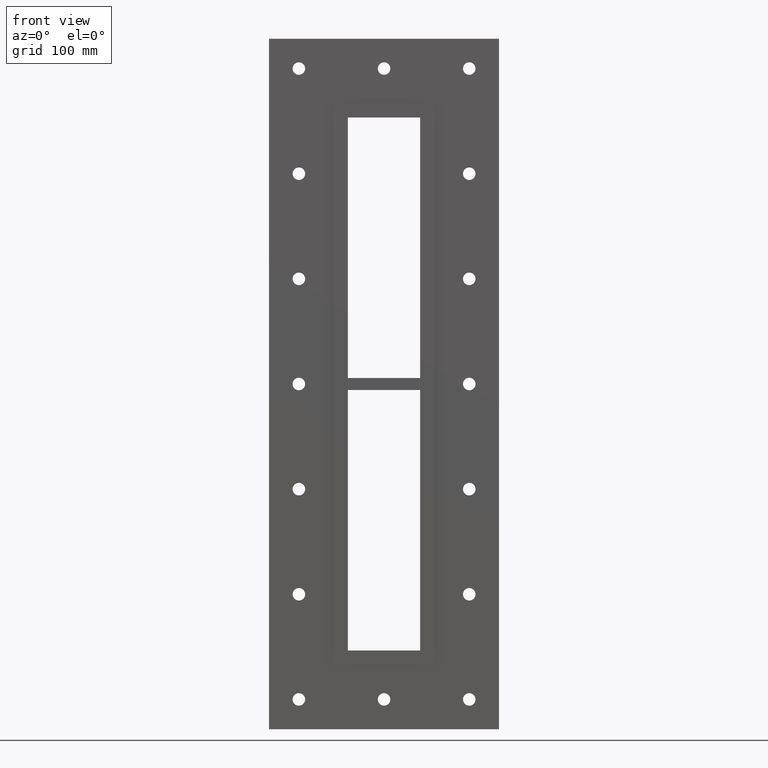
[diagram: clean part render]
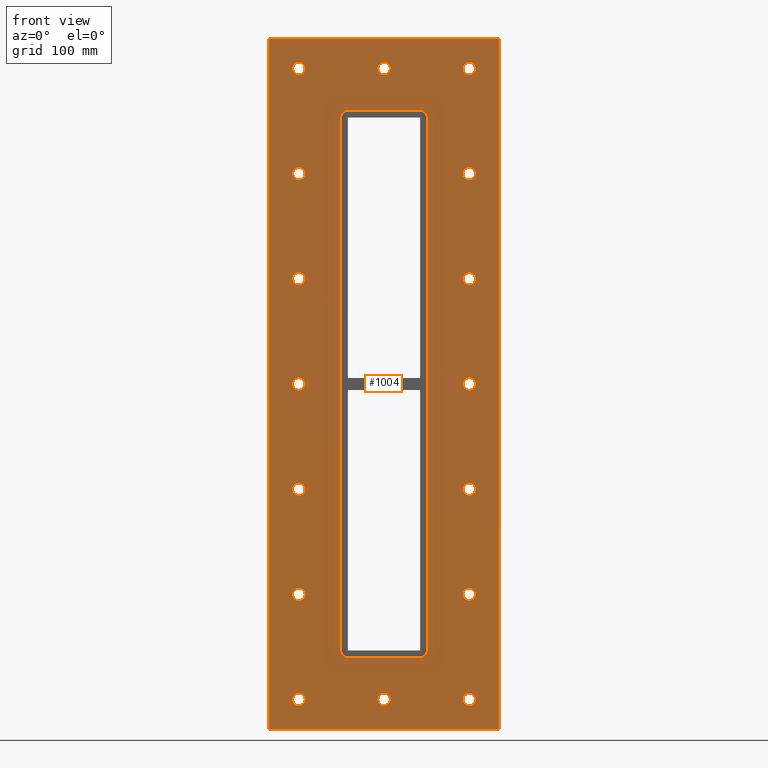
[diagram: same view with one face highlighted and labeled with its STEP entity id]
A machine part, front view. The second image highlights one B-rep face of the part: STEP entity #1004.
In plain terms, the highlighted planar face has unit normal (0, 1, 0).
Its self-contained STEP definition (entity closure, byte-faithful):
#84=CARTESIAN_POINT('',(-66.000000000000071,0.0,-263.99999999999994));
#85=VERTEX_POINT('',#84);
#86=CARTESIAN_POINT('',(-71.250000000000071,0.0,-263.99999999999994));
#87=DIRECTION('',(0.0,1.0,0.0));
#88=DIRECTION('',(1.0,0.0,0.0));
#89=AXIS2_PLACEMENT_3D('',#86,#87,#88);
#90=CIRCLE('',#89,5.25);
#91=EDGE_CURVE('',#85,#85,#90,.T.);
#112=CARTESIAN_POINT('',(76.599999999999937,0.0,-175.99999999999997));
#113=VERTEX_POINT('',#112);
#114=CARTESIAN_POINT('',(71.349999999999923,0.0,-175.99999999999997));
#115=DIRECTION('',(0.0,1.0,0.0));
#116=DIRECTION('',(1.0,0.0,0.0));
#117=AXIS2_PLACEMENT_3D('',#114,#115,#116);
#118=CIRCLE('',#117,5.25);
#119=EDGE_CURVE('',#113,#113,#118,.T.);
#140=CARTESIAN_POINT('',(-66.000000000000071,0.0,-175.99999999999997));
#141=VERTEX_POINT('',#140);
#142=CARTESIAN_POINT('',(-71.250000000000071,0.0,-175.99999999999997));
#143=DIRECTION('',(0.0,1.0,0.0));
#144=DIRECTION('',(1.0,0.0,0.0));
#145=AXIS2_PLACEMENT_3D('',#142,#143,#144);
#146=CIRCLE('',#145,5.25);
#147=EDGE_CURVE('',#141,#141,#146,.T.);
#168=CARTESIAN_POINT('',(76.599999999999937,0.0,-87.999999999999972));
#169=VERTEX_POINT('',#168);
#170=CARTESIAN_POINT('',(71.349999999999923,0.0,-87.999999999999972));
#171=DIRECTION('',(0.0,1.0,0.0));
#172=DIRECTION('',(1.0,0.0,0.0));
#173=AXIS2_PLACEMENT_3D('',#170,#171,#172);
#174=CIRCLE('',#173,5.25);
#175=EDGE_CURVE('',#169,#169,#174,.T.);
#196=CARTESIAN_POINT('',(-66.000000000000071,0.0,-87.999999999999972));
#197=VERTEX_POINT('',#196);
#198=CARTESIAN_POINT('',(-71.250000000000071,0.0,-87.999999999999972));
#199=DIRECTION('',(0.0,1.0,0.0));
#200=DIRECTION('',(1.0,0.0,0.0));
#201=AXIS2_PLACEMENT_3D('',#198,#199,#200);
#202=CIRCLE('',#201,5.25);
#203=EDGE_CURVE('',#197,#197,#202,.T.);
#224=CARTESIAN_POINT('',(76.599999999999937,0.0,3.552714E-014));
#225=VERTEX_POINT('',#224);
#226=CARTESIAN_POINT('',(71.349999999999923,0.0,3.552714E-014));
#227=DIRECTION('',(0.0,1.0,0.0));
#228=DIRECTION('',(1.0,0.0,0.0));
#229=AXIS2_PLACEMENT_3D('',#226,#227,#228);
#230=CIRCLE('',#229,5.25);
#231=EDGE_CURVE('',#225,#225,#230,.T.);
#252=CARTESIAN_POINT('',(-66.000000000000071,0.0,3.552714E-014));
#253=VERTEX_POINT('',#252);
#254=CARTESIAN_POINT('',(-71.250000000000071,0.0,3.552714E-014));
#255=DIRECTION('',(0.0,1.0,0.0));
#256=DIRECTION('',(1.0,0.0,0.0));
#257=AXIS2_PLACEMENT_3D('',#254,#255,#256);
#258=CIRCLE('',#257,5.25);
#259=EDGE_CURVE('',#253,#253,#258,.T.);
#280=CARTESIAN_POINT('',(76.599999999999937,0.0,88.000000000000043));
#281=VERTEX_POINT('',#280);
#282=CARTESIAN_POINT('',(71.349999999999923,0.0,88.000000000000043));
#283=DIRECTION('',(0.0,1.0,0.0));
#284=DIRECTION('',(1.0,0.0,0.0));
#285=AXIS2_PLACEMENT_3D('',#282,#283,#284);
#286=CIRCLE('',#285,5.25);
#287=EDGE_CURVE('',#281,#281,#286,.T.);
#308=CARTESIAN_POINT('',(-66.000000000000071,0.0,88.000000000000043));
#309=VERTEX_POINT('',#308);
#310=CARTESIAN_POINT('',(-71.250000000000071,0.0,88.000000000000043));
#311=DIRECTION('',(0.0,1.0,0.0));
#312=DIRECTION('',(1.0,0.0,0.0));
#313=AXIS2_PLACEMENT_3D('',#310,#311,#312);
#314=CIRCLE('',#313,5.25);
#315=EDGE_CURVE('',#309,#309,#314,.T.);
#336=CARTESIAN_POINT('',(76.599999999999937,0.0,176.00000000000006));
#337=VERTEX_POINT('',#336);
#338=CARTESIAN_POINT('',(71.349999999999923,0.0,176.00000000000006));
#339=DIRECTION('',(0.0,1.0,0.0));
#340=DIRECTION('',(1.0,0.0,0.0));
#341=AXIS2_PLACEMENT_3D('',#338,#339,#340);
#342=CIRCLE('',#341,5.25);
#343=EDGE_CURVE('',#337,#337,#342,.T.);
#364=CARTESIAN_POINT('',(-66.000000000000071,0.0,176.00000000000006));
#365=VERTEX_POINT('',#364);
#366=CARTESIAN_POINT('',(-71.250000000000071,0.0,176.00000000000006));
#367=DIRECTION('',(0.0,1.0,0.0));
#368=DIRECTION('',(1.0,0.0,0.0));
#369=AXIS2_PLACEMENT_3D('',#366,#367,#368);
#370=CIRCLE('',#369,5.25);
#371=EDGE_CURVE('',#365,#365,#370,.T.);
#392=CARTESIAN_POINT('',(5.299999999999931,0.0,264.00000000000006));
#393=VERTEX_POINT('',#392);
#394=CARTESIAN_POINT('',(0.049999999999928,0.0,264.00000000000006));
#395=DIRECTION('',(0.0,1.0,0.0));
#396=DIRECTION('',(1.0,0.0,0.0));
#397=AXIS2_PLACEMENT_3D('',#394,#395,#396);
#398=CIRCLE('',#397,5.25);
#399=EDGE_CURVE('',#393,#393,#398,.T.);
#420=CARTESIAN_POINT('',(5.299999999999931,0.0,-264.0));
#421=VERTEX_POINT('',#420);
#422=CARTESIAN_POINT('',(0.049999999999928,0.0,-264.0));
#423=DIRECTION('',(0.0,1.0,0.0));
#424=DIRECTION('',(1.0,0.0,0.0));
#425=AXIS2_PLACEMENT_3D('',#422,#423,#424);
#426=CIRCLE('',#425,5.25);
#427=EDGE_CURVE('',#421,#421,#426,.T.);
#448=CARTESIAN_POINT('',(76.599999999999937,0.0,-264.0));
#449=VERTEX_POINT('',#448);
#450=CARTESIAN_POINT('',(71.349999999999923,0.0,-264.0));
#451=DIRECTION('',(0.0,1.0,0.0));
#452=DIRECTION('',(1.0,0.0,0.0));
#453=AXIS2_PLACEMENT_3D('',#450,#451,#452);
#454=CIRCLE('',#453,5.25);
#455=EDGE_CURVE('',#449,#449,#454,.T.);
#476=CARTESIAN_POINT('',(-66.000000000000071,0.0,264.00000000000006));
#477=VERTEX_POINT('',#476);
#478=CARTESIAN_POINT('',(-71.250000000000071,0.0,264.00000000000006));
#479=DIRECTION('',(0.0,1.0,0.0));
#480=DIRECTION('',(1.0,0.0,0.0));
#481=AXIS2_PLACEMENT_3D('',#478,#479,#480);
#482=CIRCLE('',#481,5.25);
#483=EDGE_CURVE('',#477,#477,#482,.T.);
#504=CARTESIAN_POINT('',(76.599999999999937,0.0,264.00000000000006));
#505=VERTEX_POINT('',#504);
#506=CARTESIAN_POINT('',(71.349999999999923,0.0,264.00000000000006));
#507=DIRECTION('',(0.0,1.0,0.0));
#508=DIRECTION('',(1.0,0.0,0.0));
#509=AXIS2_PLACEMENT_3D('',#506,#507,#508);
#510=CIRCLE('',#509,5.25);
#511=EDGE_CURVE('',#505,#505,#510,.T.);
#847=CARTESIAN_POINT('',(0.0,0.0,4.099108E-014));
#848=DIRECTION('',(0.0,1.0,0.0));
#849=DIRECTION('',(0.0,0.0,1.0));
#850=AXIS2_PLACEMENT_3D('',#847,#848,#849);
#851=PLANE('',#850);
#852=CARTESIAN_POINT('',(-96.25,0.0,289.00000000000006));
#853=VERTEX_POINT('',#852);
#854=CARTESIAN_POINT('',(96.25,0.0,289.00000000000006));
#855=VERTEX_POINT('',#854);
#856=CARTESIAN_POINT('',(-96.25,0.0,289.00000000000006));
#857=DIRECTION('',(1.0,0.0,0.0));
#858=VECTOR('',#857,192.5);
#859=LINE('',#856,#858);
#860=EDGE_CURVE('',#853,#855,#859,.T.);
#861=ORIENTED_EDGE('',*,*,#860,.F.);
#862=CARTESIAN_POINT('',(-96.25,0.0,-289.0));
#863=VERTEX_POINT('',#862);
#864=CARTESIAN_POINT('',(-96.25,0.0,-289.0));
#865=DIRECTION('',(0.0,0.0,1.0));
#866=VECTOR('',#865,578.0);
#867=LINE('',#864,#866);
#868=EDGE_CURVE('',#863,#853,#867,.T.);
#869=ORIENTED_EDGE('',*,*,#868,.F.);
#870=CARTESIAN_POINT('',(96.25,0.0,-289.0));
#871=VERTEX_POINT('',#870);
#872=CARTESIAN_POINT('',(96.25,0.0,-289.0));
#873=DIRECTION('',(-1.0,0.0,0.0));
#874=VECTOR('',#873,192.5);
#875=LINE('',#872,#874);
#876=EDGE_CURVE('',#871,#863,#875,.T.);
#877=ORIENTED_EDGE('',*,*,#876,.F.);
#878=CARTESIAN_POINT('',(96.25,0.0,289.00000000000006));
#879=DIRECTION('',(0.0,0.0,-1.0));
#880=VECTOR('',#879,578.0);
#881=LINE('',#878,#880);
#882=EDGE_CURVE('',#855,#871,#881,.T.);
#883=ORIENTED_EDGE('',*,*,#882,.F.);
#884=EDGE_LOOP('',(#861,#869,#877,#883));
#885=FACE_OUTER_BOUND('',#884,.T.);
#886=ORIENTED_EDGE('',*,*,#91,.T.);
#887=EDGE_LOOP('',(#886));
#888=FACE_BOUND('',#887,.T.);
#889=ORIENTED_EDGE('',*,*,#119,.T.);
#890=EDGE_LOOP('',(#889));
#891=FACE_BOUND('',#890,.T.);
#892=ORIENTED_EDGE('',*,*,#147,.T.);
#893=EDGE_LOOP('',(#892));
#894=FACE_BOUND('',#893,.T.);
#895=ORIENTED_EDGE('',*,*,#175,.T.);
#896=EDGE_LOOP('',(#895));
#897=FACE_BOUND('',#896,.T.);
#898=ORIENTED_EDGE('',*,*,#203,.T.);
#899=EDGE_LOOP('',(#898));
#900=FACE_BOUND('',#899,.T.);
#901=ORIENTED_EDGE('',*,*,#231,.T.);
#902=EDGE_LOOP('',(#901));
#903=FACE_BOUND('',#902,.T.);
#904=ORIENTED_EDGE('',*,*,#259,.T.);
#905=EDGE_LOOP('',(#904));
#906=FACE_BOUND('',#905,.T.);
#907=ORIENTED_EDGE('',*,*,#287,.T.);
#908=EDGE_LOOP('',(#907));
#909=FACE_BOUND('',#908,.T.);
#910=ORIENTED_EDGE('',*,*,#315,.T.);
#911=EDGE_LOOP('',(#910));
#912=FACE_BOUND('',#911,.T.);
#913=ORIENTED_EDGE('',*,*,#343,.T.);
#914=EDGE_LOOP('',(#913));
#915=FACE_BOUND('',#914,.T.);
#916=ORIENTED_EDGE('',*,*,#371,.T.);
#917=EDGE_LOOP('',(#916));
#918=FACE_BOUND('',#917,.T.);
#919=ORIENTED_EDGE('',*,*,#399,.T.);
#920=EDGE_LOOP('',(#919));
#921=FACE_BOUND('',#920,.T.);
#922=ORIENTED_EDGE('',*,*,#427,.T.);
#923=EDGE_LOOP('',(#922));
#924=FACE_BOUND('',#923,.T.);
#925=ORIENTED_EDGE('',*,*,#455,.T.);
#926=EDGE_LOOP('',(#925));
#927=FACE_BOUND('',#926,.T.);
#928=ORIENTED_EDGE('',*,*,#483,.T.);
#929=EDGE_LOOP('',(#928));
#930=FACE_BOUND('',#929,.T.);
#931=ORIENTED_EDGE('',*,*,#511,.T.);
#932=EDGE_LOOP('',(#931));
#933=FACE_BOUND('',#932,.T.);
#934=CARTESIAN_POINT('',(-36.250000000000007,0.0,-223.00000000000006));
#935=VERTEX_POINT('',#934);
#936=CARTESIAN_POINT('',(-30.250000000000004,0.0,-229.00000000000006));
#937=VERTEX_POINT('',#936);
#938=CARTESIAN_POINT('',(-30.250000000000004,0.0,-223.00000000000006));
#939=DIRECTION('',(0.0,-1.0,0.0));
#940=DIRECTION('',(-0.707106781186546,0.0,-0.707106781186549));
#941=AXIS2_PLACEMENT_3D('',#938,#939,#940);
#942=CIRCLE('',#941,6.000000000000001);
#943=EDGE_CURVE('',#935,#937,#942,.T.);
#944=ORIENTED_EDGE('',*,*,#943,.F.);
#945=CARTESIAN_POINT('',(-36.250000000000007,0.0,223.00000000000006));
#946=VERTEX_POINT('',#945);
#947=CARTESIAN_POINT('',(-36.250000000000007,0.0,223.00000000000006));
#948=DIRECTION('',(0.0,0.0,-1.0));
#949=VECTOR('',#948,446.00000000000011);
#950=LINE('',#947,#949);
#951=EDGE_CURVE('',#946,#935,#950,.T.);
#952=ORIENTED_EDGE('',*,*,#951,.F.);
#953=CARTESIAN_POINT('',(-30.250000000000004,0.0,229.00000000000006));
#954=VERTEX_POINT('',#953);
#955=CARTESIAN_POINT('',(-30.250000000000004,0.0,223.00000000000006));
#956=DIRECTION('',(0.0,-1.0,0.0));
#957=DIRECTION('',(-0.707106781186546,0.0,0.707106781186549));
#958=AXIS2_PLACEMENT_3D('',#955,#956,#957);
#959=CIRCLE('',#958,6.000000000000001);
#960=EDGE_CURVE('',#954,#946,#959,.T.);
#961=ORIENTED_EDGE('',*,*,#960,.F.);
#962=CARTESIAN_POINT('',(30.250000000000004,0.0,229.00000000000006));
#963=VERTEX_POINT('',#962);
#964=CARTESIAN_POINT('',(30.249999999999996,0.0,229.00000000000006));
#965=DIRECTION('',(-1.0,0.0,0.0));
#966=VECTOR('',#965,60.5);
#967=LINE('',#964,#966);
#968=EDGE_CURVE('',#963,#954,#967,.T.);
#969=ORIENTED_EDGE('',*,*,#968,.F.);
#970=CARTESIAN_POINT('',(36.250000000000007,0.0,223.00000000000006));
#971=VERTEX_POINT('',#970);
#972=CARTESIAN_POINT('',(30.250000000000004,0.0,223.00000000000006));
#973=DIRECTION('',(0.0,-1.0,0.0));
#974=DIRECTION('',(0.707106781186546,0.0,0.707106781186549));
#975=AXIS2_PLACEMENT_3D('',#972,#973,#974);
#976=CIRCLE('',#975,6.000000000000001);
#977=EDGE_CURVE('',#971,#963,#976,.T.);
#978=ORIENTED_EDGE('',*,*,#977,.F.);
#979=CARTESIAN_POINT('',(36.250000000000007,0.0,-223.00000000000006));
#980=VERTEX_POINT('',#979);
#981=CARTESIAN_POINT('',(36.250000000000007,0.0,-223.0));
#982=DIRECTION('',(0.0,0.0,1.0));
#983=VECTOR('',#982,446.00000000000006);
#984=LINE('',#981,#983);
#985=EDGE_CURVE('',#980,#971,#984,.T.);
#986=ORIENTED_EDGE('',*,*,#985,.F.);
#987=CARTESIAN_POINT('',(30.250000000000004,0.0,-229.00000000000006));
#988=VERTEX_POINT('',#987);
#989=CARTESIAN_POINT('',(30.250000000000004,0.0,-223.00000000000006));
#990=DIRECTION('',(0.0,-1.0,0.0));
#991=DIRECTION('',(0.707106781186546,0.0,-0.707106781186549));
#992=AXIS2_PLACEMENT_3D('',#989,#990,#991);
#993=CIRCLE('',#992,6.000000000000001);
#994=EDGE_CURVE('',#988,#980,#993,.T.);
#995=ORIENTED_EDGE('',*,*,#994,.F.);
#996=CARTESIAN_POINT('',(-30.249999999999996,0.0,-229.00000000000006));
#997=DIRECTION('',(1.0,0.0,0.0));
#998=VECTOR('',#997,60.5);
#999=LINE('',#996,#998);
#1000=EDGE_CURVE('',#937,#988,#999,.T.);
#1001=ORIENTED_EDGE('',*,*,#1000,.F.);
#1002=EDGE_LOOP('',(#944,#952,#961,#969,#978,#986,#995,#1001));
#1003=FACE_BOUND('',#1002,.T.);
#1004=ADVANCED_FACE('',(#885,#888,#891,#894,#897,#900,#903,#906,#909,#912,#915,#918,#921,#924,#927,#930,#933,#1003),#851,.F.);